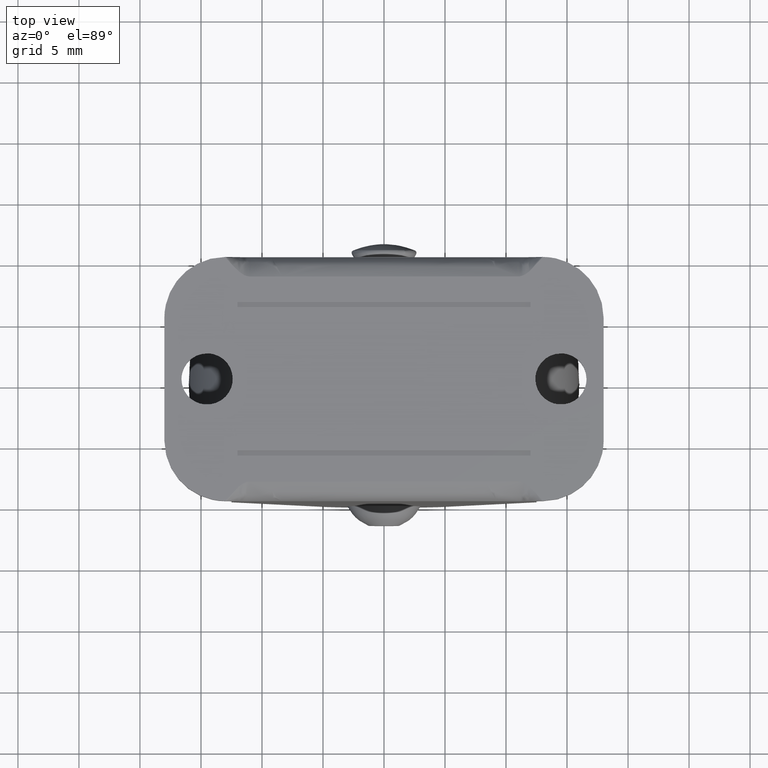
[diagram: clean part render]
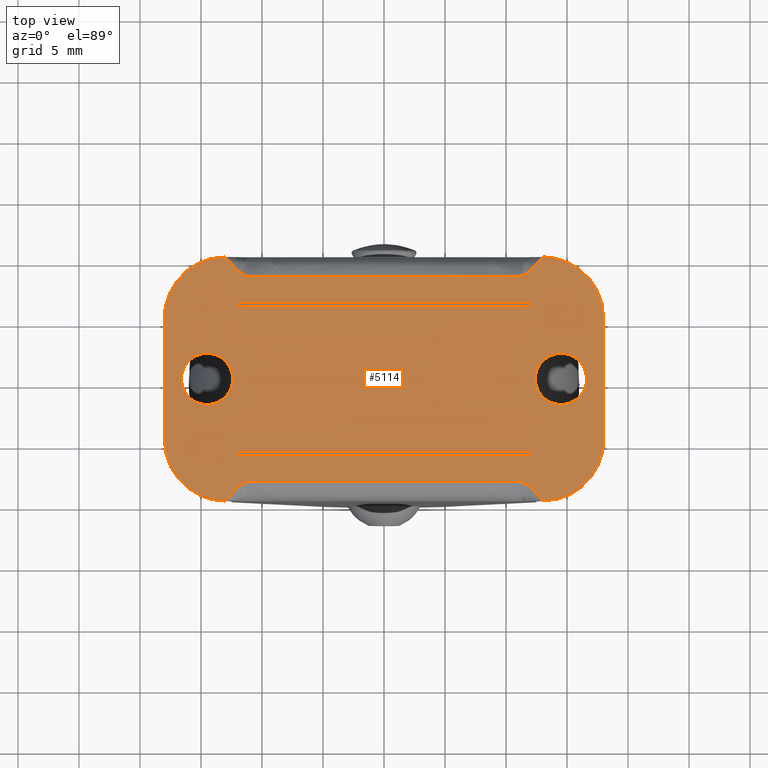
[diagram: same view with one face highlighted and labeled with its STEP entity id]
A machine part, top view. The second image highlights one B-rep face of the part: STEP entity #5114.
In plain terms, the highlighted face is a freeform B-spline surface patch.
Its self-contained STEP definition (entity closure, byte-faithful):
#3575=CARTESIAN_POINT('',(-14.747871894556420,-2.085320005152449,26.0));
#3576=VERTEX_POINT('',#3575);
#3577=CARTESIAN_POINT('',(-12.400000000000000,0.0,26.0));
#3578=VERTEX_POINT('',#3577);
#3579=CARTESIAN_POINT('',(-14.747871894556424,-2.085320005152449,26.0));
#3580=CARTESIAN_POINT('',(-14.624370653065029,-2.100000000000001,26.0));
#3581=CARTESIAN_POINT('',(-14.500000000000000,-2.100000000000000,26.0));
#3582=CARTESIAN_POINT('',(-12.400000000000002,-2.100000000000000,26.000000000000004));
#3583=CARTESIAN_POINT('',(-12.400000000000000,0.0,26.0));
#3591=(BOUNDED_CURVE()B_SPLINE_CURVE(2,(#3579,#3580,#3581,#3582,#3583),.UNSPECIFIED.,.F.,.U.)B_SPLINE_CURVE_WITH_KNOTS((3,2,3),(0.229562473227576,0.250000000000000,0.500000000000000),.UNSPECIFIED.)CURVE()GEOMETRIC_REPRESENTATION_ITEM()RATIONAL_B_SPLINE_CURVE((0.956026753623260,0.976055947996155,1.0,0.707106781186548,1.0))REPRESENTATION_ITEM(''));
#3592=EDGE_CURVE('',#3576,#3578,#3591,.T.);
#3594=CARTESIAN_POINT('',(-14.371798066886379,2.096083076680390,26.0));
#3595=VERTEX_POINT('',#3594);
#3596=CARTESIAN_POINT('',(-12.400000000000000,0.0,26.0));
#3597=CARTESIAN_POINT('',(-12.400000000000004,1.975482740331199,25.999999999999996));
#3598=CARTESIAN_POINT('',(-14.371798066886379,2.096083076680391,26.000000000000004));
#3606=(BOUNDED_CURVE()B_SPLINE_CURVE(2,(#3596,#3597,#3598),.UNSPECIFIED.,.F.,.U.)B_SPLINE_CURVE_WITH_KNOTS((3,3),(0.500000000000000,0.739332962227081),.UNSPECIFIED.)CURVE()GEOMETRIC_REPRESENTATION_ITEM()RATIONAL_B_SPLINE_CURVE((1.0,0.719603993300607,0.976072041641296))REPRESENTATION_ITEM(''));
#3607=EDGE_CURVE('',#3578,#3595,#3606,.T.);
#3674=CARTESIAN_POINT('',(-16.600000000000001,0.0,26.0));
#3675=VERTEX_POINT('',#3674);
#3676=CARTESIAN_POINT('',(-16.600000000000001,0.0,26.0));
#3677=CARTESIAN_POINT('',(-16.600000000000005,-1.865166501296291,25.999999999999996));
#3678=CARTESIAN_POINT('',(-14.747871894556415,-2.085320005152449,26.000000000000004));
#3686=(BOUNDED_CURVE()B_SPLINE_CURVE(2,(#3676,#3677,#3678),.UNSPECIFIED.,.F.,.U.)B_SPLINE_CURVE_WITH_KNOTS((3,3),(0.0,0.229562473227576),.UNSPECIFIED.)CURVE()GEOMETRIC_REPRESENTATION_ITEM()RATIONAL_B_SPLINE_CURVE((1.0,0.731050833190393,0.956026753623260))REPRESENTATION_ITEM(''));
#3687=EDGE_CURVE('',#3675,#3576,#3686,.T.);
#3721=CARTESIAN_POINT('',(-14.371798066886379,2.096083076680390,26.000000000000004));
#3722=CARTESIAN_POINT('',(-14.435839196982284,2.100000000000000,26.000000000000004));
#3723=CARTESIAN_POINT('',(-14.500000000000000,2.100000000000000,26.0));
#3724=CARTESIAN_POINT('',(-16.600000000000001,2.100000000000000,26.000000000000004));
#3725=CARTESIAN_POINT('',(-16.600000000000001,0.0,26.0));
#3733=(BOUNDED_CURVE()B_SPLINE_CURVE(2,(#3721,#3722,#3723,#3724,#3725),.UNSPECIFIED.,.F.,.U.)B_SPLINE_CURVE_WITH_KNOTS((3,2,3),(0.739332962227082,0.750000000000000,1.0),.UNSPECIFIED.)CURVE()GEOMETRIC_REPRESENTATION_ITEM()RATIONAL_B_SPLINE_CURVE((0.976072041641297,0.987502787885941,1.0,0.707106781186548,1.0))REPRESENTATION_ITEM(''));
#3734=EDGE_CURVE('',#3595,#3675,#3733,.T.);
#3761=CARTESIAN_POINT('',(14.252128105443580,-2.085320005152449,26.0));
#3762=VERTEX_POINT('',#3761);
#3763=CARTESIAN_POINT('',(16.600000000000001,0.0,26.0));
#3764=VERTEX_POINT('',#3763);
#3765=CARTESIAN_POINT('',(14.252128105443585,-2.085320005152449,26.0));
#3766=CARTESIAN_POINT('',(14.375629346934977,-2.100000000000001,26.0));
#3767=CARTESIAN_POINT('',(14.500000000000000,-2.100000000000000,26.0));
#3768=CARTESIAN_POINT('',(16.600000000000001,-2.100000000000000,26.000000000000004));
#3769=CARTESIAN_POINT('',(16.600000000000001,0.0,26.0));
#3777=(BOUNDED_CURVE()B_SPLINE_CURVE(2,(#3765,#3766,#3767,#3768,#3769),.UNSPECIFIED.,.F.,.U.)B_SPLINE_CURVE_WITH_KNOTS((3,2,3),(0.229562473227576,0.250000000000000,0.500000000000000),.UNSPECIFIED.)CURVE()GEOMETRIC_REPRESENTATION_ITEM()RATIONAL_B_SPLINE_CURVE((0.956026753623260,0.976055947996155,1.0,0.707106781186548,1.0))REPRESENTATION_ITEM(''));
#3778=EDGE_CURVE('',#3762,#3764,#3777,.T.);
#3780=CARTESIAN_POINT('',(14.628201933113621,2.096083076680390,26.0));
#3781=VERTEX_POINT('',#3780);
#3782=CARTESIAN_POINT('',(16.600000000000001,0.0,26.0));
#3783=CARTESIAN_POINT('',(16.600000000000005,1.975482740331199,25.999999999999996));
#3784=CARTESIAN_POINT('',(14.628201933113615,2.096083076680391,26.000000000000004));
#3792=(BOUNDED_CURVE()B_SPLINE_CURVE(2,(#3782,#3783,#3784),.UNSPECIFIED.,.F.,.U.)B_SPLINE_CURVE_WITH_KNOTS((3,3),(0.500000000000000,0.739332962227081),.UNSPECIFIED.)CURVE()GEOMETRIC_REPRESENTATION_ITEM()RATIONAL_B_SPLINE_CURVE((1.0,0.719603993300607,0.976072041641296))REPRESENTATION_ITEM(''));
#3793=EDGE_CURVE('',#3764,#3781,#3792,.T.);
#3860=CARTESIAN_POINT('',(12.400000000000000,0.0,26.0));
#3861=VERTEX_POINT('',#3860);
#3862=CARTESIAN_POINT('',(12.400000000000000,0.0,26.0));
#3863=CARTESIAN_POINT('',(12.400000000000004,-1.865166501296291,25.999999999999996));
#3864=CARTESIAN_POINT('',(14.252128105443576,-2.085320005152449,26.000000000000004));
#3872=(BOUNDED_CURVE()B_SPLINE_CURVE(2,(#3862,#3863,#3864),.UNSPECIFIED.,.F.,.U.)B_SPLINE_CURVE_WITH_KNOTS((3,3),(0.0,0.229562473227576),.UNSPECIFIED.)CURVE()GEOMETRIC_REPRESENTATION_ITEM()RATIONAL_B_SPLINE_CURVE((1.0,0.731050833190393,0.956026753623260))REPRESENTATION_ITEM(''));
#3873=EDGE_CURVE('',#3861,#3762,#3872,.T.);
#3907=CARTESIAN_POINT('',(14.628201933113615,2.096083076680390,25.999999999999996));
#3908=CARTESIAN_POINT('',(14.564160803017717,2.100000000000000,26.000000000000007));
#3909=CARTESIAN_POINT('',(14.500000000000000,2.100000000000000,26.0));
#3910=CARTESIAN_POINT('',(12.400000000000002,2.100000000000000,26.000000000000004));
#3911=CARTESIAN_POINT('',(12.400000000000000,0.0,26.0));
#3919=(BOUNDED_CURVE()B_SPLINE_CURVE(2,(#3907,#3908,#3909,#3910,#3911),.UNSPECIFIED.,.F.,.U.)B_SPLINE_CURVE_WITH_KNOTS((3,2,3),(0.739332962227082,0.750000000000000,1.0),.UNSPECIFIED.)CURVE()GEOMETRIC_REPRESENTATION_ITEM()RATIONAL_B_SPLINE_CURVE((0.976072041641297,0.987502787885941,1.0,0.707106781186548,1.0))REPRESENTATION_ITEM(''));
#3920=EDGE_CURVE('',#3781,#3861,#3919,.T.);
#3963=CARTESIAN_POINT('',(-13.000002617993880,-9.999999999999400,26.0));
#3964=VERTEX_POINT('',#3963);
#3965=CARTESIAN_POINT('',(13.0,-10.0,26.0));
#3966=VERTEX_POINT('',#3965);
#3967=CARTESIAN_POINT('',(-13.000002617993880,-9.999999999999400,26.0));
#3968=CARTESIAN_POINT('',(-12.333335951327220,-9.199999999999999,26.0));
#3969=CARTESIAN_POINT('',(-11.666669284660539,-8.400000000000000,26.0));
#3970=CARTESIAN_POINT('',(-11.000002617993900,-8.400000000000000,26.0));
#3971=CARTESIAN_POINT('',(-3.666669284660545,-8.400000000000000,26.0));
#3972=CARTESIAN_POINT('',(3.666664048672790,-8.400000000000000,26.0));
#3973=CARTESIAN_POINT('',(10.999997382006120,-8.400000000000000,26.0));
#3974=CARTESIAN_POINT('',(11.666664921337420,-8.400000000000000,26.0));
#3975=CARTESIAN_POINT('',(12.333332460668700,-9.199999999999999,26.0));
#3976=CARTESIAN_POINT('',(13.0,-10.0,26.0));
#3977=B_SPLINE_CURVE_WITH_KNOTS('',3,(#3967,#3968,#3969,#3970,#3971,#3972,#3973,#3974,#3975,#3976),.UNSPECIFIED.,.F.,.U.,(4,3,3,4),(0.0,0.076923069177534,0.923076830130404,1.0),.UNSPECIFIED.);
#3978=EDGE_CURVE('',#3964,#3966,#3977,.T.);
#4034=CARTESIAN_POINT('',(13.000001570796320,9.999999999999670,26.0));
#4035=VERTEX_POINT('',#4034);
#4036=CARTESIAN_POINT('',(-13.0,10.0,26.0));
#4037=VERTEX_POINT('',#4036);
#4038=CARTESIAN_POINT('',(13.000001570796320,9.999999999999670,26.0));
#4039=CARTESIAN_POINT('',(12.333334904129661,9.199999999999999,26.0));
#4040=CARTESIAN_POINT('',(11.666668237463000,8.399999999999912,26.0));
#4041=CARTESIAN_POINT('',(11.000001570796320,8.399999999999912,26.0));
#4042=CARTESIAN_POINT('',(3.666668237462995,8.399999999999912,26.0));
#4043=CARTESIAN_POINT('',(-3.666665095870335,8.399999999999912,26.0));
#4044=CARTESIAN_POINT('',(-10.999998429203661,8.399999999999912,26.0));
#4045=CARTESIAN_POINT('',(-11.666665619469100,8.399999999999912,26.0));
#4046=CARTESIAN_POINT('',(-12.333332809734561,9.199999999999999,26.0));
#4047=CARTESIAN_POINT('',(-13.0,10.0,26.0));
#4048=B_SPLINE_CURVE_WITH_KNOTS('',3,(#4038,#4039,#4040,#4041,#4042,#4043,#4044,#4045,#4046,#4047),.UNSPECIFIED.,.F.,.U.,(4,3,3,4),(0.0,0.076923072275751,0.923076867309009,1.0),.UNSPECIFIED.);
#4049=EDGE_CURVE('',#4035,#4037,#4048,.T.);
#4422=CARTESIAN_POINT('',(12.0,6.299998999999820,26.0));
#4423=VERTEX_POINT('',#4422);
#4424=CARTESIAN_POINT('',(-12.0,6.299998999999820,26.0));
#4425=VERTEX_POINT('',#4424);
#4426=CARTESIAN_POINT('',(12.0,6.299998999999820,26.0));
#4427=CARTESIAN_POINT('',(-12.0,6.299998999999820,26.0));
#4428=QUASI_UNIFORM_CURVE('',1,(#4426,#4427),.UNSPECIFIED.,.F.,.U.);
#4429=EDGE_CURVE('',#4423,#4425,#4428,.T.);
#4450=CARTESIAN_POINT('',(12.0,5.900002000000000,26.0));
#4451=VERTEX_POINT('',#4450);
#4452=CARTESIAN_POINT('',(12.0,5.900002000000000,26.0));
#4453=CARTESIAN_POINT('',(12.0,6.299998999999820,26.0));
#4454=QUASI_UNIFORM_CURVE('',1,(#4452,#4453),.UNSPECIFIED.,.F.,.U.);
#4455=EDGE_CURVE('',#4451,#4423,#4454,.T.);
#4472=CARTESIAN_POINT('',(-12.0,5.900002000000000,26.0));
#4473=VERTEX_POINT('',#4472);
#4474=CARTESIAN_POINT('',(-12.0,5.900002000000000,26.0));
#4475=CARTESIAN_POINT('',(12.0,5.900002000000000,26.0));
#4476=QUASI_UNIFORM_CURVE('',1,(#4474,#4475),.UNSPECIFIED.,.F.,.U.);
#4477=EDGE_CURVE('',#4473,#4451,#4476,.T.);
#4494=CARTESIAN_POINT('',(-12.0,6.299998999999820,26.0));
#4495=CARTESIAN_POINT('',(-12.0,5.900002000000000,26.0));
#4496=QUASI_UNIFORM_CURVE('',1,(#4494,#4495),.UNSPECIFIED.,.F.,.U.);
#4497=EDGE_CURVE('',#4425,#4473,#4496,.T.);
#4546=CARTESIAN_POINT('',(-12.0,-6.299999000000180,26.0));
#4547=VERTEX_POINT('',#4546);
#4548=CARTESIAN_POINT('',(12.0,-6.299999000000180,26.0));
#4549=VERTEX_POINT('',#4548);
#4550=CARTESIAN_POINT('',(-12.0,-6.299999000000180,26.0));
#4551=CARTESIAN_POINT('',(12.0,-6.299999000000180,26.0));
#4552=QUASI_UNIFORM_CURVE('',1,(#4550,#4551),.UNSPECIFIED.,.F.,.U.);
#4553=EDGE_CURVE('',#4547,#4549,#4552,.T.);
#4574=CARTESIAN_POINT('',(-12.0,-5.900002000000000,26.0));
#4575=VERTEX_POINT('',#4574);
#4576=CARTESIAN_POINT('',(-12.0,-5.900002000000000,26.0));
#4577=CARTESIAN_POINT('',(-12.0,-6.299999000000180,26.0));
#4578=QUASI_UNIFORM_CURVE('',1,(#4576,#4577),.UNSPECIFIED.,.F.,.U.);
#4579=EDGE_CURVE('',#4575,#4547,#4578,.T.);
#4596=CARTESIAN_POINT('',(12.0,-5.900002000000000,26.0));
#4597=VERTEX_POINT('',#4596);
#4598=CARTESIAN_POINT('',(12.0,-5.900002000000000,26.0));
#4599=CARTESIAN_POINT('',(-12.0,-5.900002000000000,26.0));
#4600=QUASI_UNIFORM_CURVE('',1,(#4598,#4599),.UNSPECIFIED.,.F.,.U.);
#4601=EDGE_CURVE('',#4597,#4575,#4600,.T.);
#4618=CARTESIAN_POINT('',(12.0,-6.299999000000180,26.0));
#4619=CARTESIAN_POINT('',(12.0,-5.900002000000000,26.0));
#4620=QUASI_UNIFORM_CURVE('',1,(#4618,#4619),.UNSPECIFIED.,.F.,.U.);
#4621=EDGE_CURVE('',#4549,#4597,#4620,.T.);
#5011=CARTESIAN_POINT('',(-19.798199930225010,10.998999961236120,26.0));
#5012=CARTESIAN_POINT('',(19.798200895820258,10.998999961236120,26.0));
#5013=CARTESIAN_POINT('',(-19.798199930225010,-10.999000497677921,26.0));
#5014=CARTESIAN_POINT('',(19.798200895820258,-10.999000497677921,26.0));
#5015=B_SPLINE_SURFACE_WITH_KNOTS('',1,1,((#5011,#5013),(#5012,#5014)),.UNSPECIFIED.,.F.,.F.,.U.,(2,2),(2,2),(0.0,39.596400826045269),(0.0,21.998000458914039),.UNSPECIFIED.);
#5016=CARTESIAN_POINT('',(-18.0,-5.000000000000091,26.0));
#5017=VERTEX_POINT('',#5016);
#5018=CARTESIAN_POINT('',(-18.0,-5.000000000000091,26.0));
#5019=CARTESIAN_POINT('',(-18.000000000000004,-9.999997382006894,25.999999999999993));
#5020=CARTESIAN_POINT('',(-13.000002617993880,-9.999999999999405,26.0));
#5028=(BOUNDED_CURVE()B_SPLINE_CURVE(2,(#5018,#5019,#5020),.UNSPECIFIED.,.F.,.U.)CURVE()GEOMETRIC_REPRESENTATION_ITEM()QUASI_UNIFORM_CURVE()RATIONAL_B_SPLINE_CURVE((1.0,0.707106966306646,1.0))REPRESENTATION_ITEM(''));
#5029=EDGE_CURVE('',#5017,#3964,#5028,.T.);
#5030=ORIENTED_EDGE('',*,*,#5029,.T.);
#5031=ORIENTED_EDGE('',*,*,#3978,.T.);
#5032=CARTESIAN_POINT('',(17.999999999998099,-5.000004363323220,26.0));
#5033=VERTEX_POINT('',#5032);
#5034=CARTESIAN_POINT('',(13.0,-10.0,26.0));
#5035=CARTESIAN_POINT('',(17.999995636678769,-10.000000000000091,26.000000000000007));
#5036=CARTESIAN_POINT('',(17.999999999998089,-5.000004363323220,26.0));
#5044=(BOUNDED_CURVE()B_SPLINE_CURVE(2,(#5034,#5035,#5036),.UNSPECIFIED.,.F.,.U.)CURVE()GEOMETRIC_REPRESENTATION_ITEM()QUASI_UNIFORM_CURVE()RATIONAL_B_SPLINE_CURVE((1.0,0.707107089720018,1.0))REPRESENTATION_ITEM(''));
#5045=EDGE_CURVE('',#3966,#5033,#5044,.T.);
#5046=ORIENTED_EDGE('',*,*,#5045,.T.);
#5047=CARTESIAN_POINT('',(18.0,4.999999999999920,26.0));
#5048=VERTEX_POINT('',#5047);
#5049=CARTESIAN_POINT('',(17.999999999998099,-5.000004363323220,26.0));
#5050=CARTESIAN_POINT('',(18.0,4.999999999999920,26.0));
#5051=QUASI_UNIFORM_CURVE('',1,(#5049,#5050),.UNSPECIFIED.,.F.,.U.);
#5052=EDGE_CURVE('',#5033,#5048,#5051,.T.);
#5053=ORIENTED_EDGE('',*,*,#5052,.T.);
#5054=CARTESIAN_POINT('',(18.0,4.999999999999920,26.0));
#5055=CARTESIAN_POINT('',(17.999999999999993,9.999998429203847,26.0));
#5056=CARTESIAN_POINT('',(13.000001570796320,9.999999999999675,26.0));
#5064=(BOUNDED_CURVE()B_SPLINE_CURVE(2,(#5054,#5055,#5056),.UNSPECIFIED.,.F.,.U.)CURVE()GEOMETRIC_REPRESENTATION_ITEM()QUASI_UNIFORM_CURVE()RATIONAL_B_SPLINE_CURVE((1.0,0.707106892258612,1.0))REPRESENTATION_ITEM(''));
#5065=EDGE_CURVE('',#5048,#4035,#5064,.T.);
#5066=ORIENTED_EDGE('',*,*,#5065,.T.);
#5067=ORIENTED_EDGE('',*,*,#4049,.T.);
#5068=CARTESIAN_POINT('',(-18.0,4.999999999999920,26.0));
#5069=VERTEX_POINT('',#5068);
#5070=CARTESIAN_POINT('',(-13.0,10.0,26.0));
#5071=CARTESIAN_POINT('',(-18.000000000000007,9.999999999999922,26.000000000000004));
#5072=CARTESIAN_POINT('',(-18.0,4.999999999999920,26.0));
#5080=(BOUNDED_CURVE()B_SPLINE_CURVE(2,(#5070,#5071,#5072),.UNSPECIFIED.,.F.,.U.)CURVE()GEOMETRIC_REPRESENTATION_ITEM()QUASI_UNIFORM_CURVE()RATIONAL_B_SPLINE_CURVE((1.0,0.707106781186548,1.0))REPRESENTATION_ITEM(''));
#5081=EDGE_CURVE('',#4037,#5069,#5080,.T.);
#5082=ORIENTED_EDGE('',*,*,#5081,.T.);
#5083=CARTESIAN_POINT('',(-18.0,4.999999999999920,26.0));
#5084=CARTESIAN_POINT('',(-18.0,-5.000000000000091,26.0));
#5085=QUASI_UNIFORM_CURVE('',1,(#5083,#5084),.UNSPECIFIED.,.F.,.U.);
#5086=EDGE_CURVE('',#5069,#5017,#5085,.T.);
#5087=ORIENTED_EDGE('',*,*,#5086,.T.);
#5088=EDGE_LOOP('',(#5030,#5031,#5046,#5053,#5066,#5067,#5082,#5087));
#5089=FACE_OUTER_BOUND('',#5088,.T.);
#5090=ORIENTED_EDGE('',*,*,#4621,.F.);
#5091=ORIENTED_EDGE('',*,*,#4553,.F.);
#5092=ORIENTED_EDGE('',*,*,#4579,.F.);
#5093=ORIENTED_EDGE('',*,*,#4601,.F.);
#5094=EDGE_LOOP('',(#5090,#5091,#5092,#5093));
#5095=FACE_BOUND('',#5094,.T.);
#5096=ORIENTED_EDGE('',*,*,#4497,.F.);
#5097=ORIENTED_EDGE('',*,*,#4429,.F.);
#5098=ORIENTED_EDGE('',*,*,#4455,.F.);
#5099=ORIENTED_EDGE('',*,*,#4477,.F.);
#5100=EDGE_LOOP('',(#5096,#5097,#5098,#5099));
#5101=FACE_BOUND('',#5100,.T.);
#5102=ORIENTED_EDGE('',*,*,#3793,.F.);
#5103=ORIENTED_EDGE('',*,*,#3778,.F.);
#5104=ORIENTED_EDGE('',*,*,#3873,.F.);
#5105=ORIENTED_EDGE('',*,*,#3920,.F.);
#5106=EDGE_LOOP('',(#5102,#5103,#5104,#5105));
#5107=FACE_BOUND('',#5106,.T.);
#5108=ORIENTED_EDGE('',*,*,#3607,.F.);
#5109=ORIENTED_EDGE('',*,*,#3592,.F.);
#5110=ORIENTED_EDGE('',*,*,#3687,.F.);
#5111=ORIENTED_EDGE('',*,*,#3734,.F.);
#5112=EDGE_LOOP('',(#5108,#5109,#5110,#5111));
#5113=FACE_BOUND('',#5112,.T.);
#5114=ADVANCED_FACE('',(#5089,#5095,#5101,#5107,#5113),#5015,.F.);